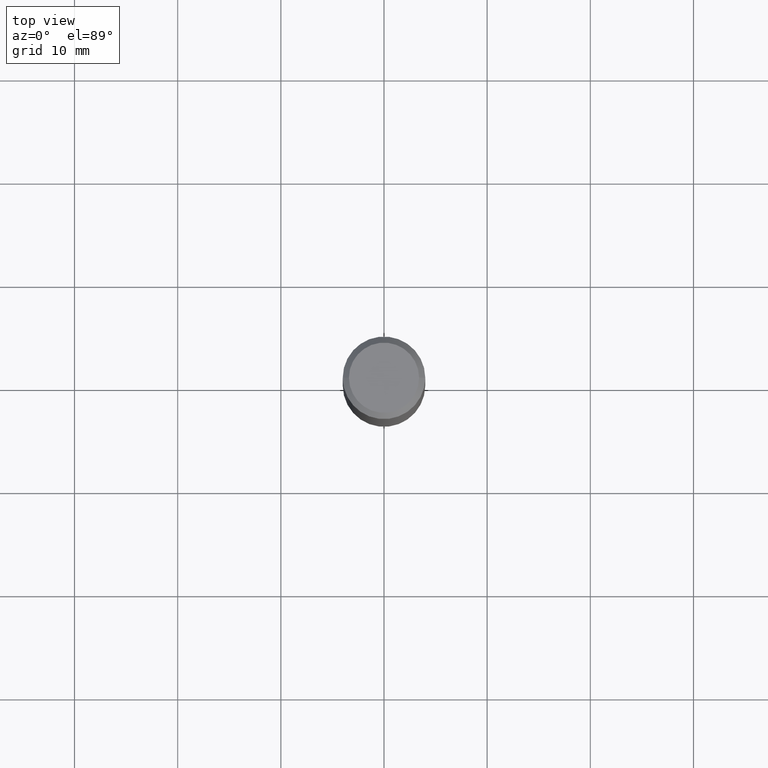
[diagram: clean part render]
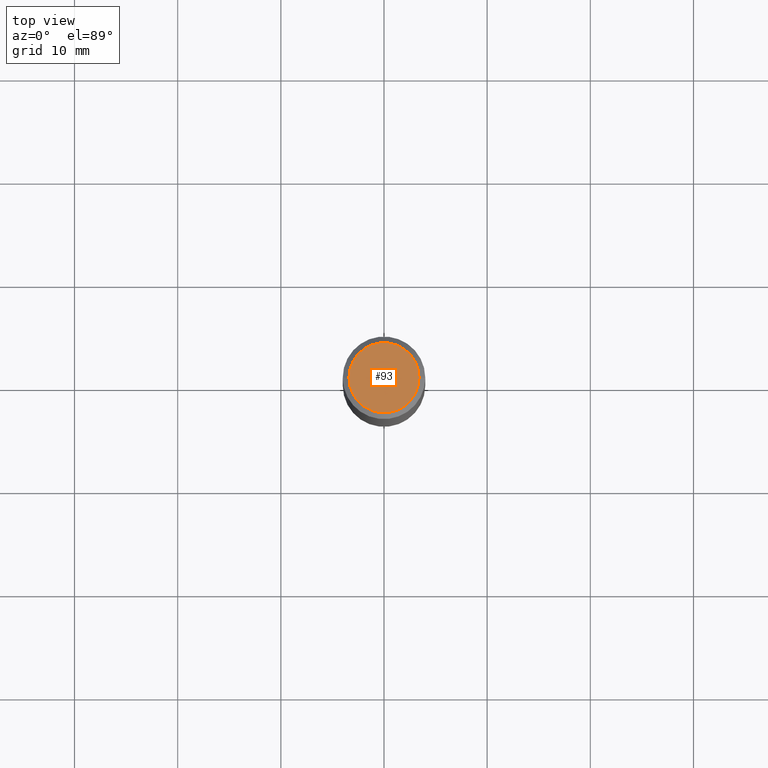
[diagram: same view with one face highlighted and labeled with its STEP entity id]
A machine part, top view. The second image highlights one B-rep face of the part: STEP entity #93.
In plain terms, the highlighted planar face has unit normal (0, -0, -1).
Its self-contained STEP definition (entity closure, byte-faithful):
#8 = DIRECTION ( 'NONE',  ( 1.000000000000000000, -6.982962677686266711E-15, 4.876170806578254279E-29 ) ) ;
#59 = CARTESIAN_POINT ( 'NONE',  ( -5.014852121625176635E-47, 7.159879756154496113E-33, 2.050671065172246833E-18 ) ) ;
#70 = AXIS2_PLACEMENT_3D ( 'NONE', #149, #185, #8 ) ;
#93 = ADVANCED_FACE ( 'NONE', ( #311 ), #235, .F. ) ;
#113 = DIRECTION ( 'NONE',  ( 1.000000000000000000, -6.982962677686266711E-15, 4.876170806578254279E-29 ) ) ;
#115 = AXIS2_PLACEMENT_3D ( 'NONE', #214, #436, #113 ) ;
#147 = CIRCLE ( 'NONE', #115, 0.1338749999999999940 ) ;
#149 = CARTESIAN_POINT ( 'NONE',  ( -1.002970424325035327E-46, 1.431975951230899223E-32, 4.101342130344493665E-18 ) ) ;
#151 = ORIENTED_EDGE ( 'NONE', *, *, #379, .T. ) ;
#154 = ORIENTED_EDGE ( 'NONE', *, *, #210, .T. ) ;
#171 = AXIS2_PLACEMENT_3D ( 'NONE', #59, #457, #382 ) ;
#174 = CARTESIAN_POINT ( 'NONE',  ( -0.1338749999999999940, 9.760872517903331886E-16, 4.101342130337811459E-18 ) ) ;
#185 = DIRECTION ( 'NONE',  ( -2.445468806185136597E-29, 3.491481338843145583E-15, 1.000000000000000000 ) ) ;
#210 = EDGE_CURVE ( 'NONE', #315, #300, #147, .T. ) ;
#214 = CARTESIAN_POINT ( 'NONE',  ( -1.002970424325035327E-46, 1.431975951230899223E-32, 4.101342130344493665E-18 ) ) ;
#235 = PLANE ( 'NONE',  #171 ) ;
#290 = CIRCLE ( 'NONE', #70, 0.1338749999999999940 ) ;
#300 = VERTEX_POINT ( 'NONE', #326 ) ;
#311 = FACE_OUTER_BOUND ( 'NONE', #378, .T. ) ;
#315 = VERTEX_POINT ( 'NONE', #174 ) ;
#326 = CARTESIAN_POINT ( 'NONE',  ( 0.1338749999999999940, -1.040731925365424925E-15, 4.101342130351401591E-18 ) ) ;
#378 = EDGE_LOOP ( 'NONE', ( #154, #151 ) ) ;
#379 = EDGE_CURVE ( 'NONE', #300, #315, #290, .T. ) ;
#382 = DIRECTION ( 'NONE',  ( -1.000000000000000000, 6.982962677686265922E-15, -4.876176775795935793E-29 ) ) ;
#436 = DIRECTION ( 'NONE',  ( -2.445468806185136597E-29, 3.491481338843145583E-15, 1.000000000000000000 ) ) ;
#457 = DIRECTION ( 'NONE',  ( 2.438088387897960049E-29, -3.491481338843145188E-15, -1.000000000000000000 ) ) ;